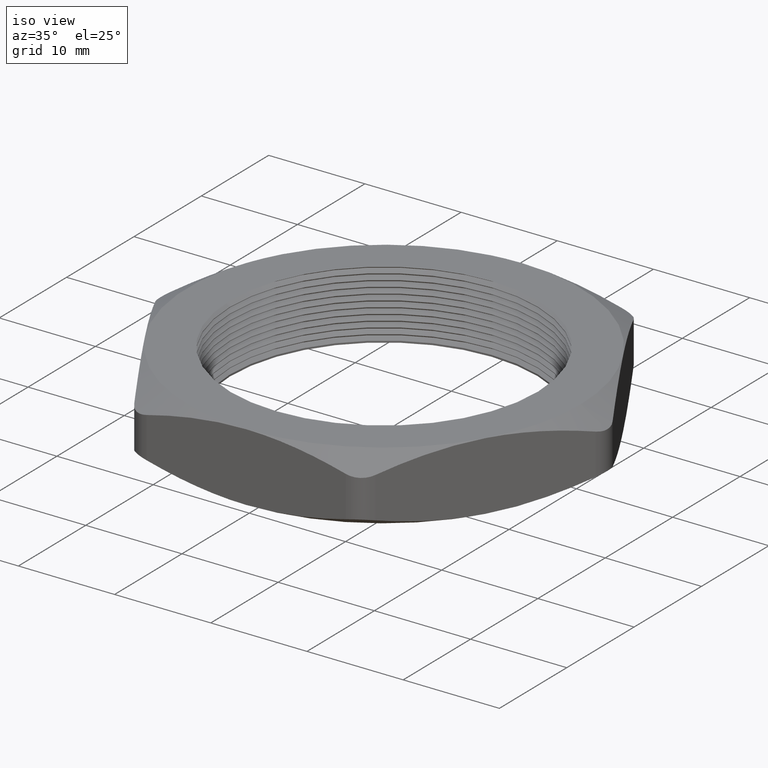
[diagram: clean part render]
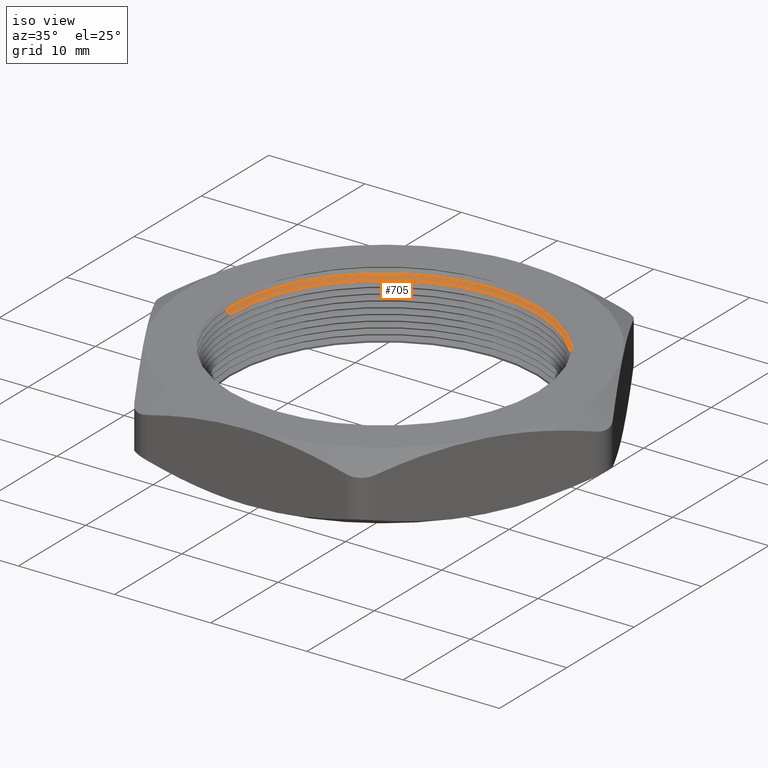
[diagram: same view with one face highlighted and labeled with its STEP entity id]
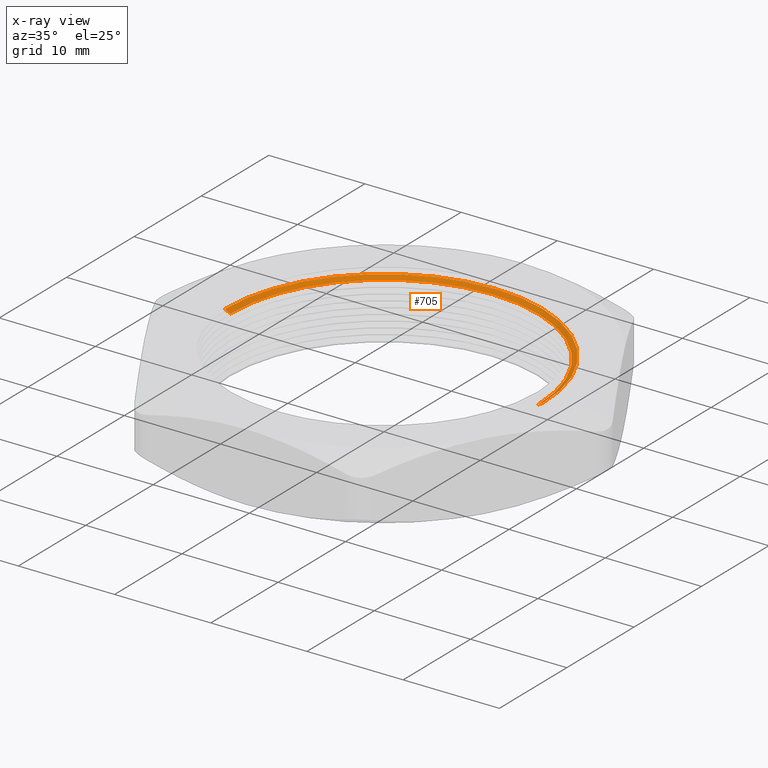
[diagram: x-ray of the same camera — body ghosted, the highlighted face saturated]
A machine part, iso view. The second image highlights one B-rep face of the part: STEP entity #705.
The next image is the same camera in x-ray: the body ghosted, the highlighted face saturated — about 0% of this face is hidden behind the body in this view.
In plain terms, the highlighted conical surface has half-angle 60 deg.
Its self-contained STEP definition (entity closure, byte-faithful):
#20 = VERTEX_POINT ( 'NONE', #1050 ) ;
#24 = VERTEX_POINT ( 'NONE', #1030 ) ;
#28 = EDGE_CURVE ( 'NONE', #528, #20, #1042, .T. ) ;
#432 = EDGE_CURVE ( 'NONE', #528, #527, #2195, .T. ) ;
#527 = VERTEX_POINT ( 'NONE', #1466 ) ;
#528 = VERTEX_POINT ( 'NONE', #1465 ) ;
#530 = EDGE_CURVE ( 'NONE', #527, #24, #1464, .T. ) ;
#704 = EDGE_CURVE ( 'NONE', #20, #24, #1771, .T. ) ;
#705 = ADVANCED_FACE ( 'NONE', ( #1766 ), #1765, .F. ) ;
#706 = EDGE_LOOP ( 'NONE', ( #826, #947, #948, #911 ) ) ;
#826 = ORIENTED_EDGE ( 'NONE', *, *, #530, .F. ) ;
#911 = ORIENTED_EDGE ( 'NONE', *, *, #704, .T. ) ;
#947 = ORIENTED_EDGE ( 'NONE', *, *, #432, .F. ) ;
#948 = ORIENTED_EDGE ( 'NONE', *, *, #28, .T. ) ;
#1002 = DIRECTION ( 'NONE',  ( 0.8660254037844360400, 0.0000000000000000000, 0.5000000000000045500 ) ) ;
#1003 = VECTOR ( 'NONE', #1002, 39.37007874015748100 ) ;
#1030 = CARTESIAN_POINT ( 'NONE',  ( -0.6500000000000000200, 0.0000000000000000000, 0.2434529946162077000 ) ) ;
#1041 = CARTESIAN_POINT ( 'NONE',  ( 0.6300000000000000000, 0.0000000000000000000, 0.2319059892324150100 ) ) ;
#1042 = LINE ( 'NONE', #1041, #1003 ) ;
#1050 = CARTESIAN_POINT ( 'NONE',  ( 0.6500000000000000200, 7.960204194457796700E-017, 0.2434529946162077000 ) ) ;
#1461 = DIRECTION ( 'NONE',  ( -0.8660254037844360400, 1.060575238724903700E-016, 0.5000000000000045500 ) ) ;
#1462 = VECTOR ( 'NONE', #1461, 39.37007874015748100 ) ;
#1463 = CARTESIAN_POINT ( 'NONE',  ( -0.6300000000000000000, 7.715274834628325400E-017, 0.2319059892324150100 ) ) ;
#1464 = LINE ( 'NONE', #1463, #1462 ) ;
#1465 = CARTESIAN_POINT ( 'NONE',  ( 0.6300000000000000000, 7.715274834628325400E-017, 0.2319059892324150100 ) ) ;
#1466 = CARTESIAN_POINT ( 'NONE',  ( -0.6300000000000000000, 0.0000000000000000000, 0.2319059892324150100 ) ) ;
#1762 = DIRECTION ( 'NONE',  ( 0.0000000000000000000, 0.0000000000000000000, 1.000000000000000000 ) ) ;
#1763 = CARTESIAN_POINT ( 'NONE',  ( 0.0000000000000000000, 0.0000000000000000000, 0.2319059892324150100 ) ) ;
#1764 = AXIS2_PLACEMENT_3D ( 'NONE', #1763, #1762, #1822 ) ;
#1765 = CONICAL_SURFACE ( 'NONE', #1764, 0.6300000000000000000, 1.047197551196592500 ) ;
#1766 = FACE_OUTER_BOUND ( 'NONE', #706, .T. ) ;
#1767 = DIRECTION ( 'NONE',  ( 1.000000000000000000, 0.0000000000000000000, 0.0000000000000000000 ) ) ;
#1768 = DIRECTION ( 'NONE',  ( 0.0000000000000000000, 0.0000000000000000000, 1.000000000000000000 ) ) ;
#1769 = CARTESIAN_POINT ( 'NONE',  ( 0.0000000000000000000, 0.0000000000000000000, 0.2434529946162077000 ) ) ;
#1770 = AXIS2_PLACEMENT_3D ( 'NONE', #1769, #1768, #1767 ) ;
#1771 = CIRCLE ( 'NONE', #1770, 0.6500000000000000200 ) ;
#1822 = DIRECTION ( 'NONE',  ( 1.000000000000000000, 0.0000000000000000000, 0.0000000000000000000 ) ) ;
#2192 = DIRECTION ( 'NONE',  ( 1.000000000000000000, 0.0000000000000000000, 0.0000000000000000000 ) ) ;
#2193 = DIRECTION ( 'NONE',  ( 0.0000000000000000000, 0.0000000000000000000, 1.000000000000000000 ) ) ;
#2194 = AXIS2_PLACEMENT_3D ( 'NONE', #2200, #2193, #2192 ) ;
#2195 = CIRCLE ( 'NONE', #2194, 0.6300000000000000000 ) ;
#2200 = CARTESIAN_POINT ( 'NONE',  ( 0.0000000000000000000, 0.0000000000000000000, 0.2319059892324150100 ) ) ;